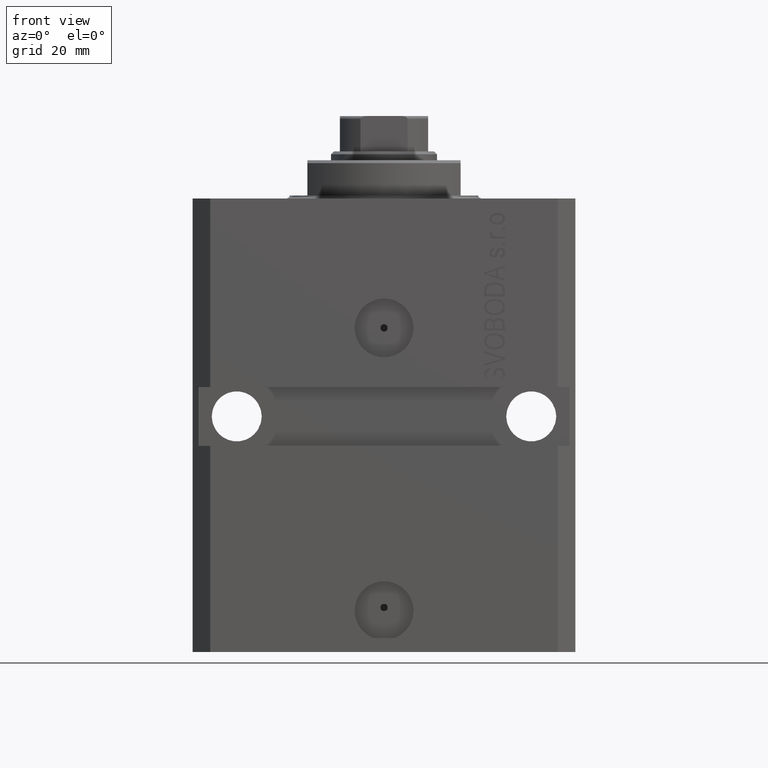
[diagram: clean part render]
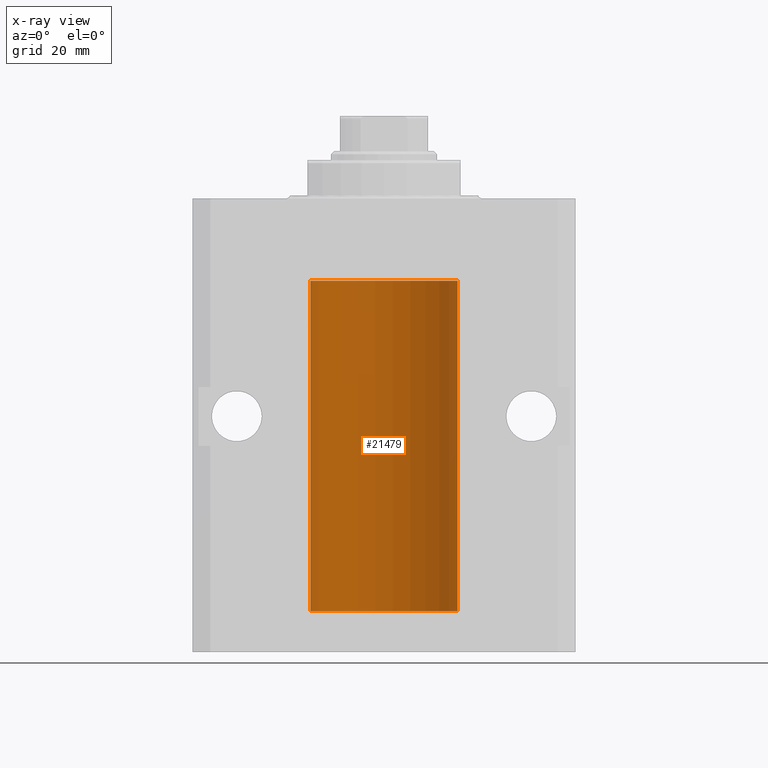
[diagram: x-ray — body ghosted, one internal face saturated and labeled with its STEP entity id]
A machine part, front view, then the same camera in x-ray: the body is ghosted and one INTERNAL B-rep face — a face not visible from any outside direction — is saturated and labeled: STEP entity #21479.
In plain terms, the highlighted cylindrical surface (partial cylindrical patch) has radius 12.5 mm, axis along (0, 0, 1).
Its self-contained STEP definition (entity closure, byte-faithful):
#630 = B_SPLINE_CURVE_WITH_KNOTS ( 'NONE', 3,
 ( #15717, #44803, #4970, #4051, #19546, #14773, #36955, #29349, #15247, #18608, #43880, #33156, #29579, #11432 ),
 .UNSPECIFIED., .F., .F.,
 ( 4, 2, 2, 2, 2, 2, 4 ),
 ( 2.030551168097110502E-20, 0.0002442924852390969078, 0.0004885849704781938157, 0.0009771699409563880650, 0.001221462426195485135, 0.001465754911434582423, 0.001954339881912776130 ),
 .UNSPECIFIED. ) ;
#1023 = DIRECTION ( 'NONE',  ( 1.000000000000000000, 0.000000000000000000, 0.000000000000000000 ) ) ;
#1355 = DIRECTION ( 'NONE',  ( -0.000000000000000000, -0.000000000000000000, 1.000000000000000000 ) ) ;
#4051 = CARTESIAN_POINT ( 'NONE',  ( -12.49625855304193678, 0.3150454781038042329, -21.45402800297484802 ) ) ;
#4285 = CARTESIAN_POINT ( 'NONE',  ( -12.50000000000000000, 1.530808498934191521E-15, -70.09999999999999432 ) ) ;
#4970 = CARTESIAN_POINT ( 'NONE',  ( -12.49915784441386890, 0.1636601911727947889, -21.39126818989430490 ) ) ;
#5517 = CARTESIAN_POINT ( 'NONE',  ( -12.49625855304193500, 0.3150454781038046770, -64.45402800297485157 ) ) ;
#5890 = DIRECTION ( 'NONE',  ( 1.000000000000000000, 0.000000000000000000, 0.000000000000000000 ) ) ;
#6871 = CARTESIAN_POINT ( 'NONE',  ( -12.48436813453758809, 0.6249418250771181516, -64.83668996798922990 ) ) ;
#7262 = VECTOR ( 'NONE', #26571, 1000.000000000000000 ) ;
#7720 = CARTESIAN_POINT ( 'NONE',  ( 0.000000000000000000, 0.000000000000000000, -13.99999999999999822 ) ) ;
#8783 = VERTEX_POINT ( 'NONE', #15374 ) ;
#10423 = VERTEX_POINT ( 'NONE', #29796 ) ;
#10518 = EDGE_CURVE ( 'NONE', #16239, #39673, #43585, .T. ) ;
#11432 = CARTESIAN_POINT ( 'NONE',  ( -12.50000000000017941, 3.883381646606358354E-13, -22.62500000000358824 ) ) ;
#11564 = EDGE_LOOP ( 'NONE', ( #35339, #18238, #35488, #21335, #12606, #33070, #25063, #46448 ) ) ;
#11669 = CARTESIAN_POINT ( 'NONE',  ( 0.000000000000000000, 0.000000000000000000, -70.09999999999999432 ) ) ;
#12606 = ORIENTED_EDGE ( 'NONE', *, *, #28565, .F. ) ;
#12849 = CARTESIAN_POINT ( 'NONE',  ( -12.50000000000000000, 1.530808498934191521E-15, -70.09999999999999432 ) ) ;
#14773 = CARTESIAN_POINT ( 'NONE',  ( -12.48810268015257563, 0.5573155909661349217, -21.67347410093867666 ) ) ;
#14876 = LINE ( 'NONE', #33720, #7262 ) ;
#15157 = VERTEX_POINT ( 'NONE', #46836 ) ;
#15247 = CARTESIAN_POINT ( 'NONE',  ( -12.48520330846397819, 0.6088355886774127201, -22.16325431852561323 ) ) ;
#15251 = FACE_OUTER_BOUND ( 'NONE', #11564, .T. ) ;
#15374 = CARTESIAN_POINT ( 'NONE',  ( -12.50000000000000000, -2.089494013101375120E-17, -21.37499999999999645 ) ) ;
#15450 = LINE ( 'NONE', #16389, #16654 ) ;
#15712 = EDGE_CURVE ( 'NONE', #39673, #33511, #15450, .T. ) ;
#15717 = CARTESIAN_POINT ( 'NONE',  ( -12.50000000000000000, -2.089494013101375120E-17, -21.37499999999999645 ) ) ;
#16239 = VERTEX_POINT ( 'NONE', #42198 ) ;
#16389 = CARTESIAN_POINT ( 'NONE',  ( -12.50000000000000000, 1.530808498934191521E-15, -70.09999999999999432 ) ) ;
#16654 = VECTOR ( 'NONE', #1355, 1000.000000000000000 ) ;
#17868 = CARTESIAN_POINT ( 'NONE',  ( -12.48436376893640265, 0.6250290278979918623, -65.08132082824472775 ) ) ;
#18238 = ORIENTED_EDGE ( 'NONE', *, *, #10518, .F. ) ;
#18608 = CARTESIAN_POINT ( 'NONE',  ( -12.48809959379011403, 0.5462151254764975317, -22.31461370481611795 ) ) ;
#19546 = CARTESIAN_POINT ( 'NONE',  ( -12.49422197749724006, 0.3843754434364375916, -21.50047099568095277 ) ) ;
#20063 = VECTOR ( 'NONE', #29814, 1000.000000000000000 ) ;
#21335 = ORIENTED_EDGE ( 'NONE', *, *, #43753, .T. ) ;
#21479 = ADVANCED_FACE ( 'NONE', ( #15251 ), #29817, .F. ) ;
#22259 = CARTESIAN_POINT ( 'NONE',  ( -12.50000000000000000, -1.053276923642966949E-14, -64.37500000000000000 ) ) ;
#24558 = CARTESIAN_POINT ( 'NONE',  ( -12.49422197749724361, 0.3843754434364307082, -64.50047099568097053 ) ) ;
#25018 = CARTESIAN_POINT ( 'NONE',  ( -12.50000000000000000, -1.053276923642966949E-14, -64.37500000000000000 ) ) ;
#25063 = ORIENTED_EDGE ( 'NONE', *, *, #26505, .F. ) ;
#25604 = CIRCLE ( 'NONE', #39286, 12.50000000000000000 ) ;
#26011 = LINE ( 'NONE', #4285, #20063 ) ;
#26501 = EDGE_CURVE ( 'NONE', #8783, #10423, #630, .T. ) ;
#26505 = EDGE_CURVE ( 'NONE', #39426, #10423, #26011, .T. ) ;
#26571 = DIRECTION ( 'NONE',  ( -0.000000000000000000, -0.000000000000000000, 1.000000000000000000 ) ) ;
#27416 = LINE ( 'NONE', #12849, #39810 ) ;
#28365 = CARTESIAN_POINT ( 'NONE',  ( -12.49999999999999822, 0.1631761135151225950, -65.62499999999985789 ) ) ;
#28565 = EDGE_CURVE ( 'NONE', #8783, #30441, #27416, .T. ) ;
#29134 = AXIS2_PLACEMENT_3D ( 'NONE', #35233, #42631, #5890 ) ;
#29349 = CARTESIAN_POINT ( 'NONE',  ( -12.48436376893640443, 0.6250290278979917513, -22.08132082824473486 ) ) ;
#29579 = CARTESIAN_POINT ( 'NONE',  ( -12.49999999999999289, 0.1631761135151241215, -22.62499999999984013 ) ) ;
#29796 = CARTESIAN_POINT ( 'NONE',  ( -12.50000000000017941, 3.883381646606358354E-13, -22.62500000000358824 ) ) ;
#29814 = DIRECTION ( 'NONE',  ( -0.000000000000000000, -0.000000000000000000, 1.000000000000000000 ) ) ;
#29817 = CYLINDRICAL_SURFACE ( 'NONE', #31335, 12.50000000000000000 ) ;
#29914 = DIRECTION ( 'NONE',  ( 0.000000000000000000, 0.000000000000000000, 1.000000000000000000 ) ) ;
#30223 = B_SPLINE_CURVE_WITH_KNOTS ( 'NONE', 3,
 ( #25018, #46468, #39563, #5517, #24558, #32180, #6871, #17868, #31936, #39098, #45352, #42913, #28365, #31059 ),
 .UNSPECIFIED., .F., .F.,
 ( 4, 2, 2, 2, 2, 2, 4 ),
 ( 3.492495172846855184E-18, 0.0002442924852390798859, 0.0004885849704781563023, 0.0009771699409563386254, 0.001221462426195450658, 0.001465754911434562473, 0.001954339881912786538 ),
 .UNSPECIFIED. ) ;
#30441 = VERTEX_POINT ( 'NONE', #34216 ) ;
#30681 = EDGE_CURVE ( 'NONE', #39426, #33511, #30223, .T. ) ;
#31059 = CARTESIAN_POINT ( 'NONE',  ( -12.50000000000017941, 3.883381774819353300E-13, -65.62500000000359535 ) ) ;
#31335 = AXIS2_PLACEMENT_3D ( 'NONE', #11669, #40781, #36731 ) ;
#31936 = CARTESIAN_POINT ( 'NONE',  ( -12.48520330846398174, 0.6088355886774118320, -65.16325431852561678 ) ) ;
#32180 = CARTESIAN_POINT ( 'NONE',  ( -12.48810268015257741, 0.5573155909661293705, -64.67347410093867666 ) ) ;
#33070 = ORIENTED_EDGE ( 'NONE', *, *, #26501, .T. ) ;
#33156 = CARTESIAN_POINT ( 'NONE',  ( -12.49631005746706336, 0.3253680783018528255, -22.55856740465392463 ) ) ;
#33511 = VERTEX_POINT ( 'NONE', #47053 ) ;
#33720 = CARTESIAN_POINT ( 'NONE',  ( 12.50000000000000000, 0.000000000000000000, -70.09999999999999432 ) ) ;
#34111 = DIRECTION ( 'NONE',  ( -0.000000000000000000, -0.000000000000000000, 1.000000000000000000 ) ) ;
#34216 = CARTESIAN_POINT ( 'NONE',  ( -12.50000000000000000, 1.530808498934191521E-15, -13.99999999999999822 ) ) ;
#35233 = CARTESIAN_POINT ( 'NONE',  ( 0.000000000000000000, 0.000000000000000000, -70.09999999999999432 ) ) ;
#35339 = ORIENTED_EDGE ( 'NONE', *, *, #15712, .F. ) ;
#35488 = ORIENTED_EDGE ( 'NONE', *, *, #45791, .T. ) ;
#36029 = CARTESIAN_POINT ( 'NONE',  ( -12.50000000000000000, 1.530808498934191521E-15, -70.09999999999999432 ) ) ;
#36731 = DIRECTION ( 'NONE',  ( 1.000000000000000000, 0.000000000000000000, 0.000000000000000000 ) ) ;
#36955 = CARTESIAN_POINT ( 'NONE',  ( -12.48436813453758454, 0.6249418250771192618, -21.83668996798922635 ) ) ;
#39098 = CARTESIAN_POINT ( 'NONE',  ( -12.48809959379011580, 0.5462151254764966435, -65.31461370481613926 ) ) ;
#39286 = AXIS2_PLACEMENT_3D ( 'NONE', #7720, #29914, #1023 ) ;
#39426 = VERTEX_POINT ( 'NONE', #22259 ) ;
#39563 = CARTESIAN_POINT ( 'NONE',  ( -12.49915784441386890, 0.1636601911727943726, -64.39126818989430490 ) ) ;
#39673 = VERTEX_POINT ( 'NONE', #36029 ) ;
#39810 = VECTOR ( 'NONE', #34111, 1000.000000000000000 ) ;
#40781 = DIRECTION ( 'NONE',  ( -0.000000000000000000, -0.000000000000000000, 1.000000000000000000 ) ) ;
#42198 = CARTESIAN_POINT ( 'NONE',  ( 12.50000000000000000, 0.000000000000000000, -70.09999999999999432 ) ) ;
#42631 = DIRECTION ( 'NONE',  ( 0.000000000000000000, 0.000000000000000000, 1.000000000000000000 ) ) ;
#42913 = CARTESIAN_POINT ( 'NONE',  ( -12.49631005746706514, 0.3253680783018499389, -65.55856740465391397 ) ) ;
#43585 = CIRCLE ( 'NONE', #29134, 12.50000000000000000 ) ;
#43753 = EDGE_CURVE ( 'NONE', #15157, #30441, #25604, .T. ) ;
#43880 = CARTESIAN_POINT ( 'NONE',  ( -12.49011732893843529, 0.5003763274120274218, -22.38348111289287701 ) ) ;
#44803 = CARTESIAN_POINT ( 'NONE',  ( -12.50000000000000000, 0.08260426088729219685, -21.37500000000000000 ) ) ;
#45352 = CARTESIAN_POINT ( 'NONE',  ( -12.49011732893843885, 0.5003763274120245352, -65.38348111289289477 ) ) ;
#45791 = EDGE_CURVE ( 'NONE', #16239, #15157, #14876, .T. ) ;
#46448 = ORIENTED_EDGE ( 'NONE', *, *, #30681, .T. ) ;
#46468 = CARTESIAN_POINT ( 'NONE',  ( -12.49999999999999645, 0.08260426088728485550, -64.37499999999998579 ) ) ;
#46836 = CARTESIAN_POINT ( 'NONE',  ( 12.50000000000000000, 0.000000000000000000, -13.99999999999999822 ) ) ;
#47053 = CARTESIAN_POINT ( 'NONE',  ( -12.50000000000017941, 3.883381774819353300E-13, -65.62500000000359535 ) ) ;